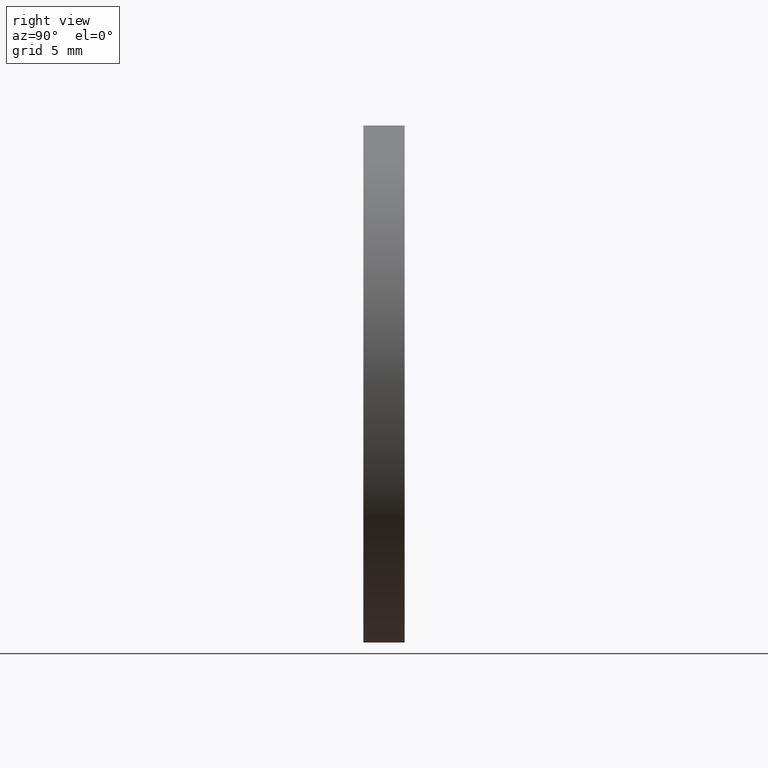
[diagram: clean part render]
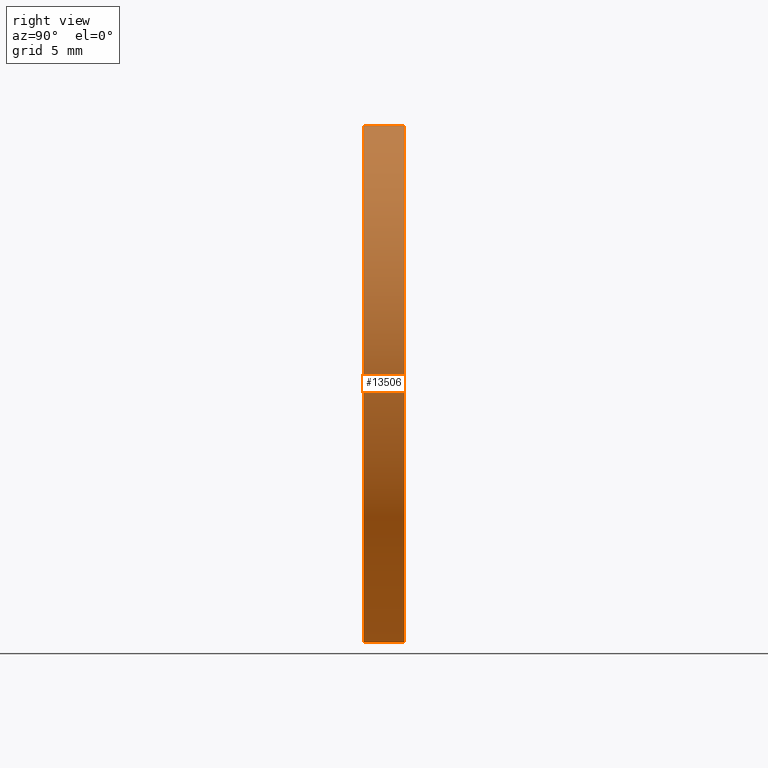
[diagram: same view with one face highlighted and labeled with its STEP entity id]
A machine part, right view. The second image highlights one B-rep face of the part: STEP entity #13506.
In plain terms, the highlighted cylindrical surface (partial cylindrical patch) has radius 12.5 mm, axis along (-0, -1, -0).
Its self-contained STEP definition (entity closure, byte-faithful):
#117 = CARTESIAN_POINT ( 'NONE',  ( 0.000000000000000000, 1.000000000000000000, -12.50000000000000000 ) ) ;
#137 = AXIS2_PLACEMENT_3D ( 'NONE', #14093, #16997, #8979 ) ;
#1566 = ORIENTED_EDGE ( 'NONE', *, *, #2593, .F. ) ;
#1599 = DIRECTION ( 'NONE',  ( 0.000000000000000000, 0.000000000000000000, 1.000000000000000000 ) ) ;
#1643 = DIRECTION ( 'NONE',  ( 0.000000000000000000, 1.000000000000000000, 0.000000000000000000 ) ) ;
#2187 = LINE ( 'NONE', #117, #3004 ) ;
#2329 = VERTEX_POINT ( 'NONE', #3940 ) ;
#2593 = EDGE_CURVE ( 'NONE', #13632, #14302, #2187, .T. ) ;
#3004 = VECTOR ( 'NONE', #13543, 1000.000000000000000 ) ;
#3033 = CARTESIAN_POINT ( 'NONE',  ( 0.000000000000000000, -1.000000000000000000, -12.50000000000000000 ) ) ;
#3740 = DIRECTION ( 'NONE',  ( 0.000000000000000000, 0.000000000000000000, 1.000000000000000000 ) ) ;
#3940 = CARTESIAN_POINT ( 'NONE',  ( 1.530808498934191521E-15, 1.000000000000000000, 12.50000000000000000 ) ) ;
#5384 = ORIENTED_EDGE ( 'NONE', *, *, #15657, .F. ) ;
#5734 = CIRCLE ( 'NONE', #6543, 12.50000000000000000 ) ;
#6372 = VERTEX_POINT ( 'NONE', #7313 ) ;
#6543 = AXIS2_PLACEMENT_3D ( 'NONE', #14524, #11776, #3740 ) ;
#6601 = VECTOR ( 'NONE', #16714, 1000.000000000000000 ) ;
#7313 = CARTESIAN_POINT ( 'NONE',  ( 1.530808498934191521E-15, -1.000000000000000000, 12.50000000000000000 ) ) ;
#7510 = EDGE_CURVE ( 'NONE', #2329, #6372, #10155, .T. ) ;
#7763 = CYLINDRICAL_SURFACE ( 'NONE', #137, 12.50000000000000000 ) ;
#7998 = ORIENTED_EDGE ( 'NONE', *, *, #7510, .T. ) ;
#8048 = CARTESIAN_POINT ( 'NONE',  ( 1.530808498934191521E-15, 1.000000000000000000, 12.50000000000000000 ) ) ;
#8979 = DIRECTION ( 'NONE',  ( 0.000000000000000000, 0.000000000000000000, -1.000000000000000000 ) ) ;
#10155 = LINE ( 'NONE', #8048, #6601 ) ;
#11776 = DIRECTION ( 'NONE',  ( 0.000000000000000000, 1.000000000000000000, 0.000000000000000000 ) ) ;
#12282 = EDGE_CURVE ( 'NONE', #6372, #14302, #5734, .T. ) ;
#12393 = CIRCLE ( 'NONE', #15540, 12.50000000000000000 ) ;
#13506 = ADVANCED_FACE ( 'NONE', ( #14088 ), #7763, .T. ) ;
#13543 = DIRECTION ( 'NONE',  ( -0.000000000000000000, -1.000000000000000000, -0.000000000000000000 ) ) ;
#13632 = VERTEX_POINT ( 'NONE', #16709 ) ;
#14088 = FACE_OUTER_BOUND ( 'NONE', #16065, .T. ) ;
#14093 = CARTESIAN_POINT ( 'NONE',  ( 0.000000000000000000, 1.000000000000000000, 0.000000000000000000 ) ) ;
#14302 = VERTEX_POINT ( 'NONE', #3033 ) ;
#14524 = CARTESIAN_POINT ( 'NONE',  ( 0.000000000000000000, -1.000000000000000000, 0.000000000000000000 ) ) ;
#15323 = ORIENTED_EDGE ( 'NONE', *, *, #12282, .T. ) ;
#15540 = AXIS2_PLACEMENT_3D ( 'NONE', #16219, #1643, #1599 ) ;
#15657 = EDGE_CURVE ( 'NONE', #2329, #13632, #12393, .T. ) ;
#16065 = EDGE_LOOP ( 'NONE', ( #5384, #7998, #15323, #1566 ) ) ;
#16219 = CARTESIAN_POINT ( 'NONE',  ( 0.000000000000000000, 1.000000000000000000, 0.000000000000000000 ) ) ;
#16709 = CARTESIAN_POINT ( 'NONE',  ( 0.000000000000000000, 1.000000000000000000, -12.50000000000000000 ) ) ;
#16714 = DIRECTION ( 'NONE',  ( -0.000000000000000000, -1.000000000000000000, -0.000000000000000000 ) ) ;
#16997 = DIRECTION ( 'NONE',  ( -0.000000000000000000, -1.000000000000000000, -0.000000000000000000 ) ) ;